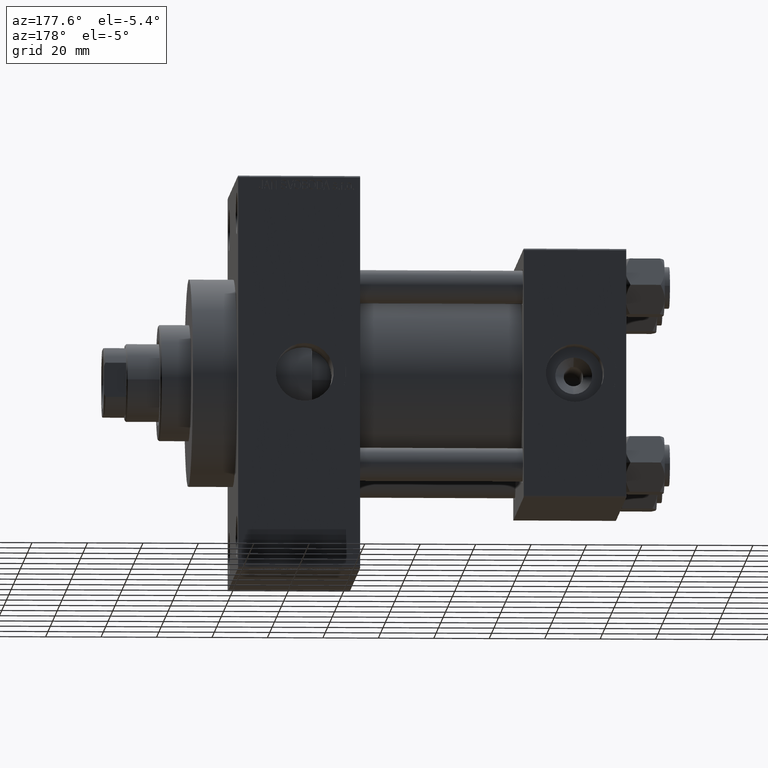
[diagram: clean part render]
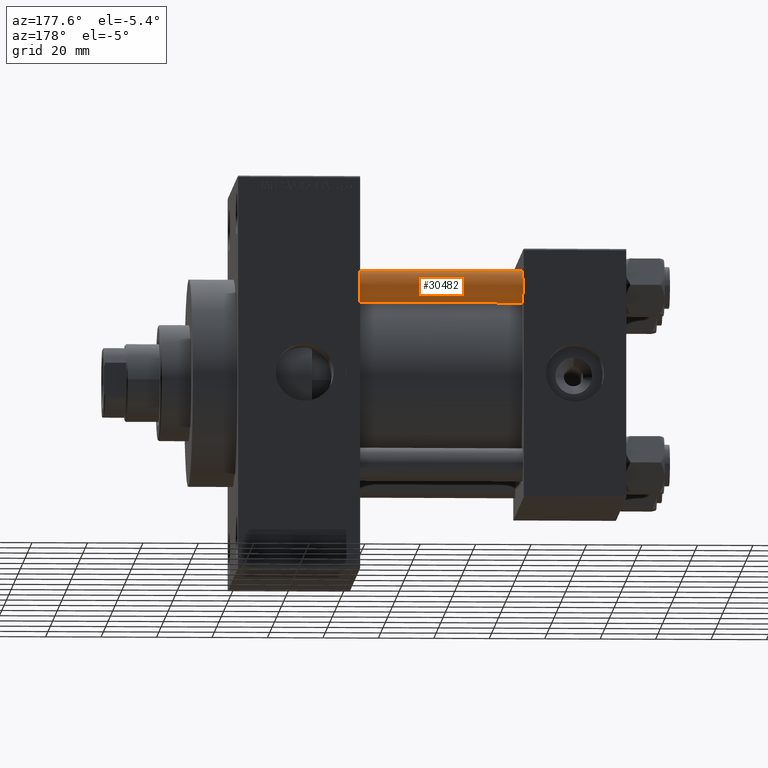
[diagram: same view with one face highlighted and labeled with its STEP entity id]
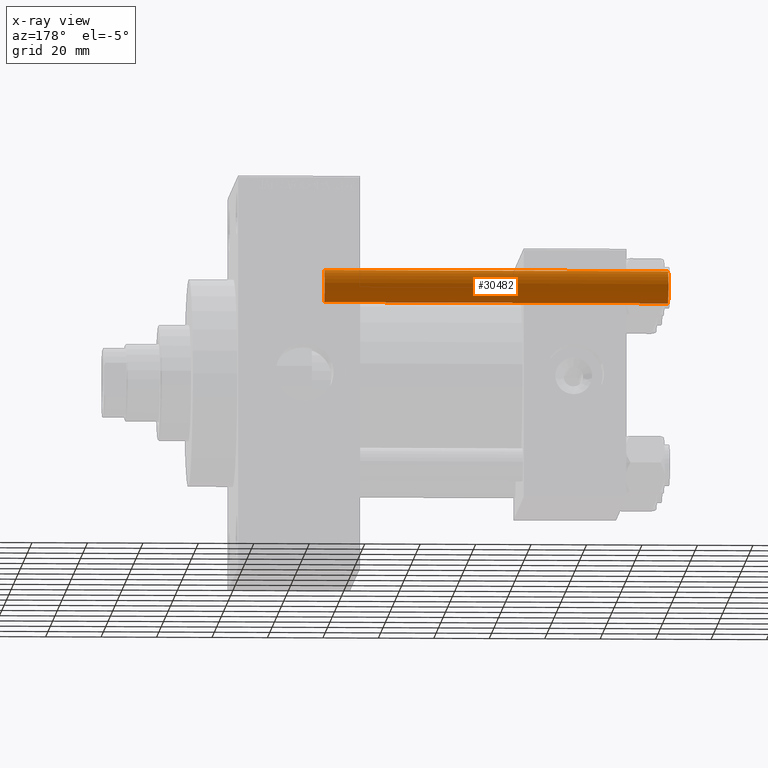
[diagram: x-ray of the same camera — body ghosted, the highlighted face saturated]
A machine part, auxiliary view. The second image highlights one B-rep face of the part: STEP entity #30482.
The next image is the same camera in x-ray: the body ghosted, the highlighted face saturated — about 0% of this face is hidden behind the body in this view.
In plain terms, the highlighted cylindrical surface (edge-blend (fillet) strip) has radius 6 mm, axis along (-1, -0, 0).
Its self-contained STEP definition (entity closure, byte-faithful):
#189 = VERTEX_POINT ( 'NONE', #44675 ) ;
#2008 = CARTESIAN_POINT ( 'NONE',  ( -6.000000000000000888, 0.000000000000000000, 125.0000000000000000 ) ) ;
#2010 = DIRECTION ( 'NONE',  ( -0.000000000000000000, -0.000000000000000000, 1.000000000000000000 ) ) ;
#3051 = AXIS2_PLACEMENT_3D ( 'NONE', #6333, #3443, #10386 ) ;
#3238 = VERTEX_POINT ( 'NONE', #7989 ) ;
#3443 = DIRECTION ( 'NONE',  ( -0.000000000000000000, -0.000000000000000000, -1.000000000000000000 ) ) ;
#5816 = CARTESIAN_POINT ( 'NONE',  ( 0.000000000000000000, 0.000000000000000000, 0.4999999999999865663 ) ) ;
#6333 = CARTESIAN_POINT ( 'NONE',  ( 0.000000000000000000, 0.000000000000000000, 125.0000000000000000 ) ) ;
#6421 = EDGE_LOOP ( 'NONE', ( #14383, #29752, #20363, #11114 ) ) ;
#7989 = CARTESIAN_POINT ( 'NONE',  ( 6.000000000000000888, 7.347880794884120722E-16, 124.5000000000000000 ) ) ;
#8102 = EDGE_CURVE ( 'NONE', #36514, #189, #29754, .T. ) ;
#10386 = DIRECTION ( 'NONE',  ( -1.000000000000000000, 0.000000000000000000, 0.000000000000000000 ) ) ;
#11045 = LINE ( 'NONE', #36127, #37157 ) ;
#11114 = ORIENTED_EDGE ( 'NONE', *, *, #13019, .F. ) ;
#11842 = EDGE_CURVE ( 'NONE', #36760, #3238, #30684, .T. ) ;
#13019 = EDGE_CURVE ( 'NONE', #36760, #189, #34721, .T. ) ;
#14383 = ORIENTED_EDGE ( 'NONE', *, *, #11842, .T. ) ;
#16554 = DIRECTION ( 'NONE',  ( -0.000000000000000000, -0.000000000000000000, -1.000000000000000000 ) ) ;
#17762 = CYLINDRICAL_SURFACE ( 'NONE', #3051, 6.000000000000000888 ) ;
#20363 = ORIENTED_EDGE ( 'NONE', *, *, #8102, .T. ) ;
#20597 = DIRECTION ( 'NONE',  ( 1.000000000000000000, 0.000000000000000000, 0.000000000000000000 ) ) ;
#22230 = DIRECTION ( 'NONE',  ( -0.000000000000000000, -0.000000000000000000, -1.000000000000000000 ) ) ;
#24831 = EDGE_CURVE ( 'NONE', #3238, #36514, #11045, .T. ) ;
#29752 = ORIENTED_EDGE ( 'NONE', *, *, #24831, .T. ) ;
#29754 = CIRCLE ( 'NONE', #45789, 6.000000000000000888 ) ;
#30482 = ADVANCED_FACE ( 'NONE', ( #35476 ), #17762, .T. ) ;
#30684 = CIRCLE ( 'NONE', #46707, 6.000000000000000888 ) ;
#30719 = VECTOR ( 'NONE', #16554, 1000.000000000000000 ) ;
#34721 = LINE ( 'NONE', #2008, #30719 ) ;
#35476 = FACE_OUTER_BOUND ( 'NONE', #6421, .T. ) ;
#36127 = CARTESIAN_POINT ( 'NONE',  ( 6.000000000000000888, 7.347880794884120722E-16, 125.0000000000000000 ) ) ;
#36137 = CARTESIAN_POINT ( 'NONE',  ( 6.000000000000000888, 7.347880794884120722E-16, 0.4999999999999865663 ) ) ;
#36514 = VERTEX_POINT ( 'NONE', #36137 ) ;
#36760 = VERTEX_POINT ( 'NONE', #43236 ) ;
#37157 = VECTOR ( 'NONE', #22230, 1000.000000000000000 ) ;
#39924 = CARTESIAN_POINT ( 'NONE',  ( 0.000000000000000000, 0.000000000000000000, 124.5000000000000000 ) ) ;
#43236 = CARTESIAN_POINT ( 'NONE',  ( -6.000000000000000888, 0.000000000000000000, 124.5000000000000000 ) ) ;
#43263 = DIRECTION ( 'NONE',  ( 0.000000000000000000, 0.000000000000000000, -1.000000000000000000 ) ) ;
#44675 = CARTESIAN_POINT ( 'NONE',  ( -6.000000000000000888, 0.000000000000000000, 0.4999999999999865663 ) ) ;
#45789 = AXIS2_PLACEMENT_3D ( 'NONE', #5816, #2010, #20597 ) ;
#46401 = DIRECTION ( 'NONE',  ( 1.000000000000000000, 0.000000000000000000, 0.000000000000000000 ) ) ;
#46707 = AXIS2_PLACEMENT_3D ( 'NONE', #39924, #43263, #46401 ) ;